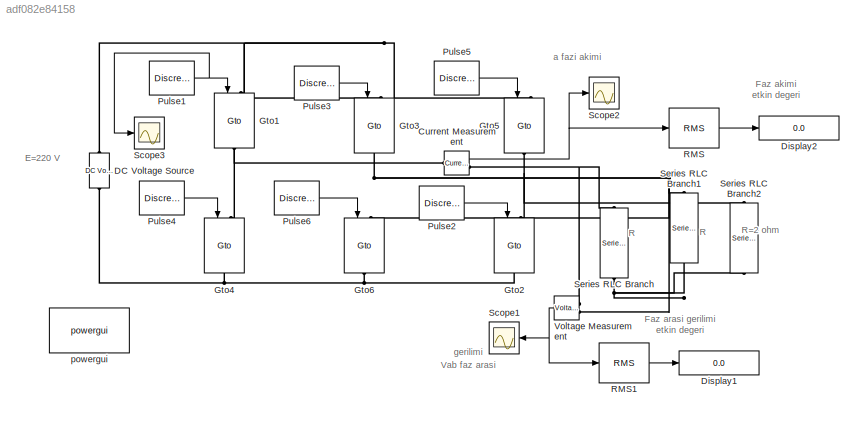
MODEL slx_adf082e84158
KIND model
CONFIG AbsTol = auto
CONFIG EnableMultiTasking = on
CONFIG FixedStep = auto
CONFIG MaxStep = auto
CONFIG MinStep = auto
CONFIG RelTol = 1e-3
CONFIG SampleTimeConstraint = Unconstrained
CONFIG Solver = ode15s
CONFIG SolverName = ode15s
CONFIG StartTime = 0.0
CONFIG StopTime = 0.1
BLOCK [Reference] Current Measurement  REF=powerlib/Measurements/Current Measurement
  Ports = [0, 1, 0, 0, 0, 1, 1]
  SourceBlock = powerlib/Measurements/Current Measurement
  SourceProductBaseCode = PS
  SourceType = Current Measurement
BLOCK [Reference] DC Voltage Source  REF=powerlib/Electrical
Sources/DC Voltage Source
  Ports = [0, 0, 0, 0, 0, 1, 1]
  SourceBlock = powerlib/Electrical\nSources/DC Voltage Source
  SourceProductBaseCode = PS
  SourceType = DC Voltage Source
BLOCK [Display] Display1
  Decimation = 1
  Ports = [1]
BLOCK [Display] Display2
  Decimation = 1
  Ports = [1]
BLOCK [Reference] Gto1  REF=powerlib/Power
Electronics/Gto
  Ports = [1, 0, 0, 0, 0, 1, 1]
  SourceBlock = powerlib/Power\nElectronics/Gto
  SourceProductBaseCode = PS
  SourceType = Gto
BLOCK [Reference] Gto2  REF=powerlib/Power
Electronics/Gto
  Ports = [1, 0, 0, 0, 0, 1, 1]
  SourceBlock = powerlib/Power\nElectronics/Gto
  SourceProductBaseCode = PS
  SourceType = Gto
BLOCK [Reference] Gto3  REF=powerlib/Power
Electronics/Gto
  Ports = [1, 0, 0, 0, 0, 1, 1]
  SourceBlock = powerlib/Power\nElectronics/Gto
  SourceProductBaseCode = PS
  SourceType = Gto
BLOCK [Reference] Gto4  REF=powerlib/Power
Electronics/Gto
  Ports = [1, 0, 0, 0, 0, 1, 1]
  SourceBlock = powerlib/Power\nElectronics/Gto
  SourceProductBaseCode = PS
  SourceType = Gto
BLOCK [Reference] Gto5  REF=powerlib/Power
Electronics/Gto
  Ports = [1, 0, 0, 0, 0, 1, 1]
  SourceBlock = powerlib/Power\nElectronics/Gto
  SourceProductBaseCode = PS
  SourceType = Gto
BLOCK [Reference] Gto6  REF=powerlib/Power
Electronics/Gto
  Ports = [1, 0, 0, 0, 0, 1, 1]
  SourceBlock = powerlib/Power\nElectronics/Gto
  SourceProductBaseCode = PS
  SourceType = Gto
BLOCK [DiscretePulseGenerator] Pulse1
  Period = 0.02
  Ports = [0, 1]
  PulseType = Time based
  PulseWidth = 100*(120/360)
BLOCK [DiscretePulseGenerator] Pulse2
  Period = 0.02
  PhaseDelay = 0.02/6
  Ports = [0, 1]
  PulseType = Time based
  PulseWidth = 100*(120/360)
BLOCK [DiscretePulseGenerator] Pulse3
  Period = 0.02
  PhaseDelay = 2*(0.02/6)
  Ports = [0, 1]
  PulseType = Time based
  PulseWidth = 100*(120/360)
BLOCK [DiscretePulseGenerator] Pulse4
  Period = 0.02
  PhaseDelay = 3*(0.02/6)
  Ports = [0, 1]
  PulseType = Time based
  PulseWidth = 100*(120/360)
BLOCK [DiscretePulseGenerator] Pulse5
  Period = 0.02
  PhaseDelay = 4*(0.02/6)
  Ports = [0, 1]
  PulseType = Time based
  PulseWidth = 100*(120/360)
BLOCK [DiscretePulseGenerator] Pulse6
  Period = 0.02
  PhaseDelay = 5*(0.02/6)
  Ports = [0, 1]
  PulseType = Time based
  PulseWidth = 100*(120/360)
BLOCK [Reference] RMS  REF=powerlib_meascontrol/Measurements/RMS
  Ports = [1, 1]
  SourceBlock = powerlib_meascontrol/Measurements/RMS
  SourceProductBaseCode = PS
  SourceType = RMS
BLOCK [Reference] RMS1  REF=powerlib_meascontrol/Measurements/RMS
  Ports = [1, 1]
  SourceBlock = powerlib_meascontrol/Measurements/RMS
  SourceProductBaseCode = PS
  SourceType = RMS
BLOCK [Scope] Scope1
  Floating = off
  NumInputPorts = 1
  Ports = [1]
  ScopeSpecificationString = Simulink.scopes.TimeScopeBlockCfg('CurrentConfiguration', extmgr.ConfigurationSet(extmgr.Configuration('Core','General UI',true,'FigureColor',[0.941176470588235 0.941176470588235 0.941176470588235]),extmgr.Configuration('Core','Source UI',true),extmgr.Configuration('Sources','WiredSimulink',true,'DataLogging',true,'DataLoggingVariableName','ScopeData1','DataLoggingSaveFormat','StructureWithTime','...<+2493ch>
BLOCK [Scope] Scope2
  Floating = off
  NumInputPorts = 1
  Ports = [1]
  ScopeSpecificationString = Simulink.scopes.TimeScopeBlockCfg('CurrentConfiguration', extmgr.ConfigurationSet(extmgr.Configuration('Core','General UI',true,'FigureColor',[0.941176470588235 0.941176470588235 0.941176470588235]),extmgr.Configuration('Core','Source UI',true),extmgr.Configuration('Sources','WiredSimulink',true,'DataLogging',true,'DataLoggingSaveFormat','StructureWithTime','DataLoggingDecimation','1','DataLogging...<+2446ch>
BLOCK [Scope] Scope3
  Floating = off
  NumInputPorts = 1
  Ports = [1]
  ScopeSpecificationString = Simulink.scopes.TimeScopeBlockCfg('CurrentConfiguration', extmgr.ConfigurationSet(extmgr.Configuration('Core','General UI',true),extmgr.Configuration('Core','Source UI',true),extmgr.Configuration('Sources','WiredSimulink',true,'DataLogging',true,'DataLoggingVariableName','ScopeData2','DataLoggingSaveFormat','StructureWithTime','DataLoggingDecimation','1','DataLoggingDecimateData',true),extmgr.Conf...<+1621ch>
BLOCK [Reference] Series RLC Branch  REF=powerlib/Elements/Series RLC Branch
  Ports = [0, 0, 0, 0, 0, 1, 1]
  SourceBlock = powerlib/Elements/Series RLC Branch
  SourceProductBaseCode = PS
  SourceType = Series RLC Branch
BLOCK [Reference] Series RLC Branch1  REF=powerlib/Elements/Series RLC Branch
  Ports = [0, 0, 0, 0, 0, 1, 1]
  SourceBlock = powerlib/Elements/Series RLC Branch
  SourceProductBaseCode = PS
  SourceType = Series RLC Branch
BLOCK [Reference] Series RLC Branch2  REF=powerlib/Elements/Series RLC Branch
  Ports = [0, 0, 0, 0, 0, 1, 1]
  SourceBlock = powerlib/Elements/Series RLC Branch
  SourceProductBaseCode = PS
  SourceType = Series RLC Branch
BLOCK [Reference] Voltage Measurement  REF=powerlib/Measurements/Voltage Measurement
  Ports = [0, 1, 0, 0, 0, 2]
  SourceBlock = powerlib/Measurements/Voltage Measurement
  SourceProductBaseCode = PS
  SourceType = Voltage Measurement
BLOCK [Reference] powergui  REF=powerlib/powergui
  Ports = []
  Priority = 2
  SourceBlock = powerlib/powergui
  SourceProductBaseCode = PS
  SourceType = PSB option menu block
ANNOTATION (root): E=220 V
ANNOTATION (root): Faz akimi etkin degeri
ANNOTATION (root): Faz arasi gerilimi etkin degeri
ANNOTATION (root): R
ANNOTATION (root): R=2 ohm
ANNOTATION (root): Vab faz arasi gerilimi
ANNOTATION (root): a fazi akimi
NET Current Measurement:1 -> RMS:1, Scope2:1
NET Pulse1:1 -> Gto1:1, Scope3:1
LINE Pulse2:1 -> Gto2:1
LINE Pulse3:1 -> Gto3:1
LINE Pulse4:1 -> Gto4:1
LINE Pulse5:1 -> Gto5:1
LINE Pulse6:1 -> Gto6:1
LINE RMS1:1 -> Display1:1
LINE RMS:1 -> Display2:1
NET Voltage Measurement:1 -> RMS1:1, Scope1:1
PNET net1: Current Measurement:LConn1 -- Gto1:RConn1 -- Gto4:LConn1
PNET net2: Current Measurement:RConn1 -- Series RLC Branch:LConn1 -- Voltage Measurement:LConn1
PNET net3: DC Voltage Source:LConn1 -- Gto2:RConn1 -- Gto4:RConn1 -- Gto6:RConn1
PNET net4: DC Voltage Source:RConn1 -- Gto1:LConn1 -- Gto3:LConn1 -- Gto5:LConn1
PNET net5: Gto2:LConn1 -- Gto5:RConn1 -- Series RLC Branch2:LConn1
PNET net6: Gto3:RConn1 -- Gto6:LConn1 -- Series RLC Branch1:LConn1 -- Voltage Measurement:LConn2
PNET net7: Series RLC Branch1:RConn1 -- Series RLC Branch2:RConn1 -- Series RLC Branch:RConn1
note: NET lines group one-source signal fan-out (src -> all destinations, sorted); 1:1 wires keep LINE; PNET lines group multi-terminal physical nets as a canonical sorted terminal list (undirected conserving connections); 2-terminal nets keep the pairwise PLINE form
